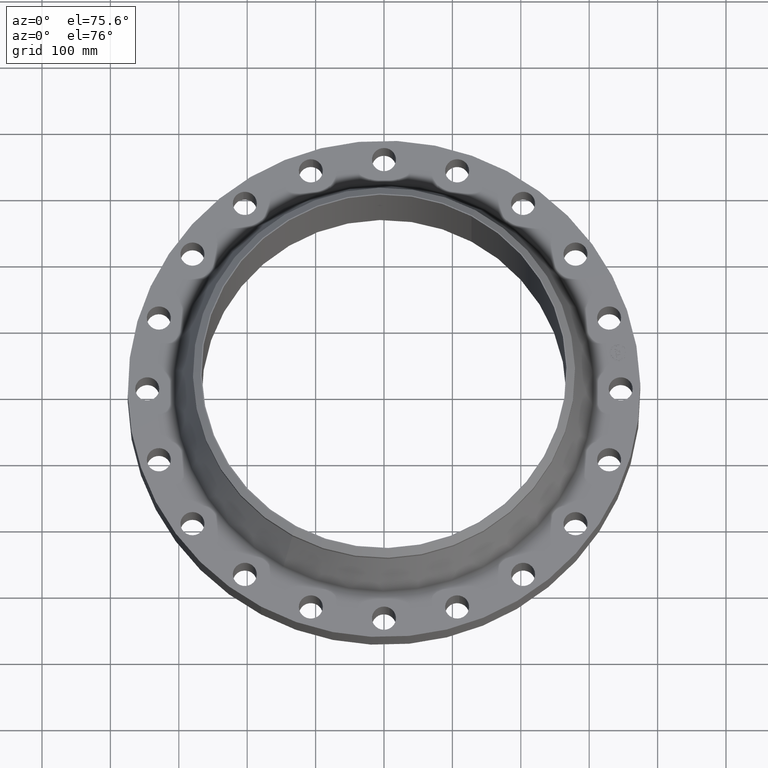
[diagram: clean part render]
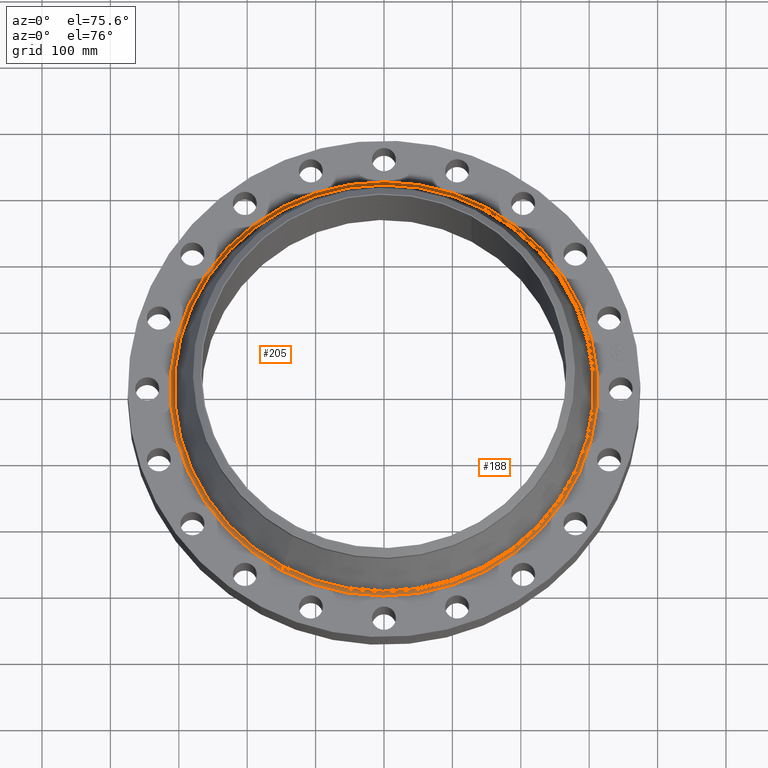
[diagram: same view with one multi-face feature highlighted, each face labeled with its STEP entity id]
A machine part, auxiliary view. The highlighted faces form ONE feature: a constant-radius fillet chain: 2 tangent blend faces with common blend radius 6.35 mm. The faces share edges in the B-rep.
Their STEP definitions:
[1] entity #188 (Torus):
#152=AXIS2_PLACEMENT_3D('Torus Axis2P3D',#149,#150,#151) ;
#156=AXIS2_PLACEMENT_3D('Circle Axis2P3D',#154,#155,$) ;
#165=AXIS2_PLACEMENT_3D('Circle Axis2P3D',#163,#164,$) ;
#172=AXIS2_PLACEMENT_3D('Circle Axis2P3D',#170,#171,$) ;
#179=AXIS2_PLACEMENT_3D('Circle Axis2P3D',#177,#178,$) ;
#149=CARTESIAN_POINT('Axis2P3D Location',(0.,0.,2.06000000001)) ;
#154=CARTESIAN_POINT('Axis2P3D Location',(0.,0.,1.81000000001)) ;
#158=CARTESIAN_POINT('Vertex',(5.90039045652,10.800592284,1.81000000001)) ;
#160=CARTESIAN_POINT('Vertex',(-5.90039045652,-10.800592284,1.81000000001)) ;
#163=CARTESIAN_POINT('Axis2P3D Location',(5.90039045652,10.800592284,2.06000000001)) ;
#167=CARTESIAN_POINT('Vertex',(5.78628963945,10.5917321393,1.98345953028)) ;
#170=CARTESIAN_POINT('Axis2P3D Location',(0.,0.,1.98345953028)) ;
#174=CARTESIAN_POINT('Vertex',(-5.78628963945,-10.5917321393,1.98345953028)) ;
#177=CARTESIAN_POINT('Axis2P3D Location',(-5.90039045652,-10.800592284,2.06000000001)) ;
#150=DIRECTION('Axis2P3D Direction',(0.,0.,-0.0393700787402)) ;
#151=DIRECTION('Axis2P3D XDirection',(-0.0188750212049,-0.0345504945626,0.)) ;
#155=DIRECTION('Axis2P3D Direction',(0.,0.,-0.0393700787402)) ;
#164=DIRECTION('Axis2P3D Direction',(-0.0345504945626,0.0188750212049,0.)) ;
#171=DIRECTION('Axis2P3D Direction',(0.,0.,-0.0393700787402)) ;
#178=DIRECTION('Axis2P3D Direction',(0.0345504945626,-0.0188750212049,0.)) ;
#183=ORIENTED_EDGE('',*,*,#162,.F.) ;
#184=ORIENTED_EDGE('',*,*,#169,.T.) ;
#185=ORIENTED_EDGE('',*,*,#176,.T.) ;
#186=ORIENTED_EDGE('',*,*,#181,.F.) ;
#188=ADVANCED_FACE('PartBody',(#187),#153,.F.) ;
#157=CIRCLE('generated circle',#156,12.3072093191) ;
#166=CIRCLE('generated circle',#165,0.250000000001) ;
#173=CIRCLE('generated circle',#172,12.0692144526) ;
#180=CIRCLE('generated circle',#179,0.250000000001) ;
#153=TOROIDAL_SURFACE('homeo Torus',#152,12.3072093191,0.250000000001) ;
#162=EDGE_CURVE('',#159,#161,#157,.T.) ;
#169=EDGE_CURVE('',#159,#168,#166,.T.) ;
#176=EDGE_CURVE('',#168,#175,#173,.T.) ;
#181=EDGE_CURVE('',#161,#175,#180,.T.) ;
#182=EDGE_LOOP('',(#183,#184,#185,#186)) ;
#187=FACE_OUTER_BOUND('',#182,.T.) ;
#159=VERTEX_POINT('',#158) ;
#161=VERTEX_POINT('',#160) ;
#168=VERTEX_POINT('',#167) ;
#175=VERTEX_POINT('',#174) ;
[2] entity #205 (Torus):
#152=AXIS2_PLACEMENT_3D('Torus Axis2P3D',#149,#150,#151) ;
#165=AXIS2_PLACEMENT_3D('Circle Axis2P3D',#163,#164,$) ;
#179=AXIS2_PLACEMENT_3D('Circle Axis2P3D',#177,#178,$) ;
#191=AXIS2_PLACEMENT_3D('Circle Axis2P3D',#189,#190,$) ;
#196=AXIS2_PLACEMENT_3D('Circle Axis2P3D',#194,#195,$) ;
#149=CARTESIAN_POINT('Axis2P3D Location',(0.,0.,2.06000000001)) ;
#158=CARTESIAN_POINT('Vertex',(5.90039045652,10.800592284,1.81000000001)) ;
#160=CARTESIAN_POINT('Vertex',(-5.90039045652,-10.800592284,1.81000000001)) ;
#163=CARTESIAN_POINT('Axis2P3D Location',(5.90039045652,10.800592284,2.06000000001)) ;
#167=CARTESIAN_POINT('Vertex',(5.78628963945,10.5917321393,1.98345953028)) ;
#174=CARTESIAN_POINT('Vertex',(-5.78628963945,-10.5917321393,1.98345953028)) ;
#177=CARTESIAN_POINT('Axis2P3D Location',(-5.90039045652,-10.800592284,2.06000000001)) ;
#189=CARTESIAN_POINT('Axis2P3D Location',(0.,0.,1.81000000001)) ;
#194=CARTESIAN_POINT('Axis2P3D Location',(0.,0.,1.98345953028)) ;
#150=DIRECTION('Axis2P3D Direction',(0.,0.,-0.0393700787402)) ;
#151=DIRECTION('Axis2P3D XDirection',(-0.0188750212049,-0.0345504945626,0.)) ;
#164=DIRECTION('Axis2P3D Direction',(-0.0345504945626,0.0188750212049,0.)) ;
#178=DIRECTION('Axis2P3D Direction',(0.0345504945626,-0.0188750212049,0.)) ;
#190=DIRECTION('Axis2P3D Direction',(0.,0.,-0.0393700787402)) ;
#195=DIRECTION('Axis2P3D Direction',(0.,0.,-0.0393700787402)) ;
#200=ORIENTED_EDGE('',*,*,#193,.F.) ;
#201=ORIENTED_EDGE('',*,*,#181,.T.) ;
#202=ORIENTED_EDGE('',*,*,#198,.T.) ;
#203=ORIENTED_EDGE('',*,*,#169,.F.) ;
#205=ADVANCED_FACE('PartBody',(#204),#153,.F.) ;
#166=CIRCLE('generated circle',#165,0.250000000001) ;
#180=CIRCLE('generated circle',#179,0.250000000001) ;
#192=CIRCLE('generated circle',#191,12.3072093191) ;
#197=CIRCLE('generated circle',#196,12.0692144526) ;
#153=TOROIDAL_SURFACE('homeo Torus',#152,12.3072093191,0.250000000001) ;
#169=EDGE_CURVE('',#159,#168,#166,.T.) ;
#181=EDGE_CURVE('',#161,#175,#180,.T.) ;
#193=EDGE_CURVE('',#161,#159,#192,.T.) ;
#198=EDGE_CURVE('',#175,#168,#197,.T.) ;
#199=EDGE_LOOP('',(#200,#201,#202,#203)) ;
#204=FACE_OUTER_BOUND('',#199,.T.) ;
#159=VERTEX_POINT('',#158) ;
#161=VERTEX_POINT('',#160) ;
#168=VERTEX_POINT('',#167) ;
#175=VERTEX_POINT('',#174) ;